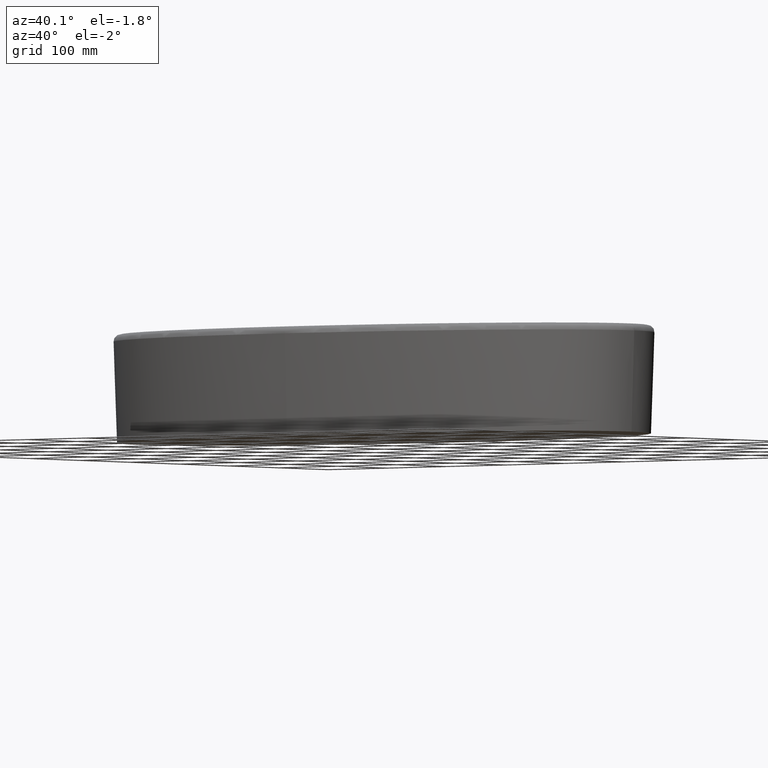
[diagram: clean part render]
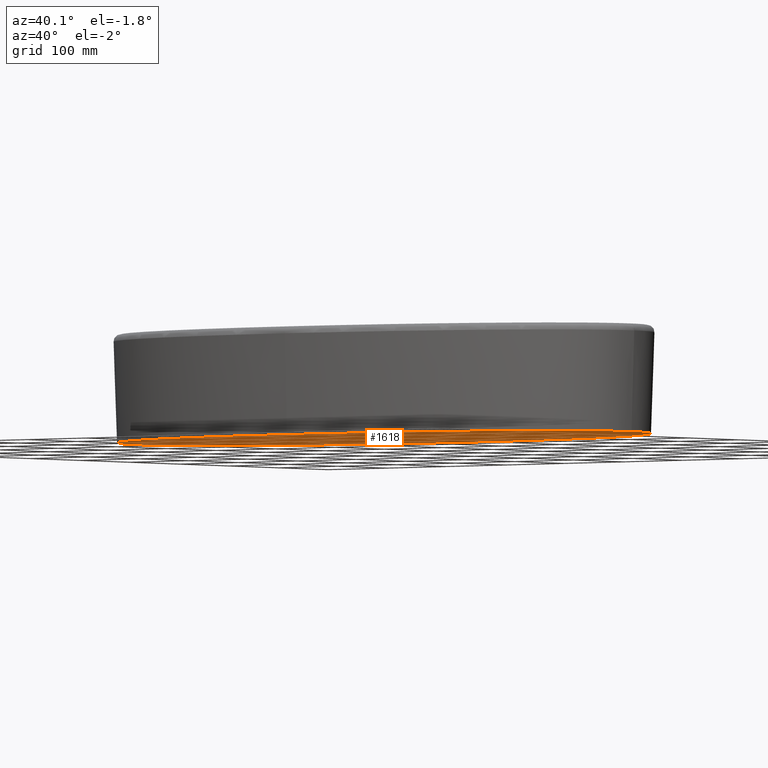
[diagram: same view with one face highlighted and labeled with its STEP entity id]
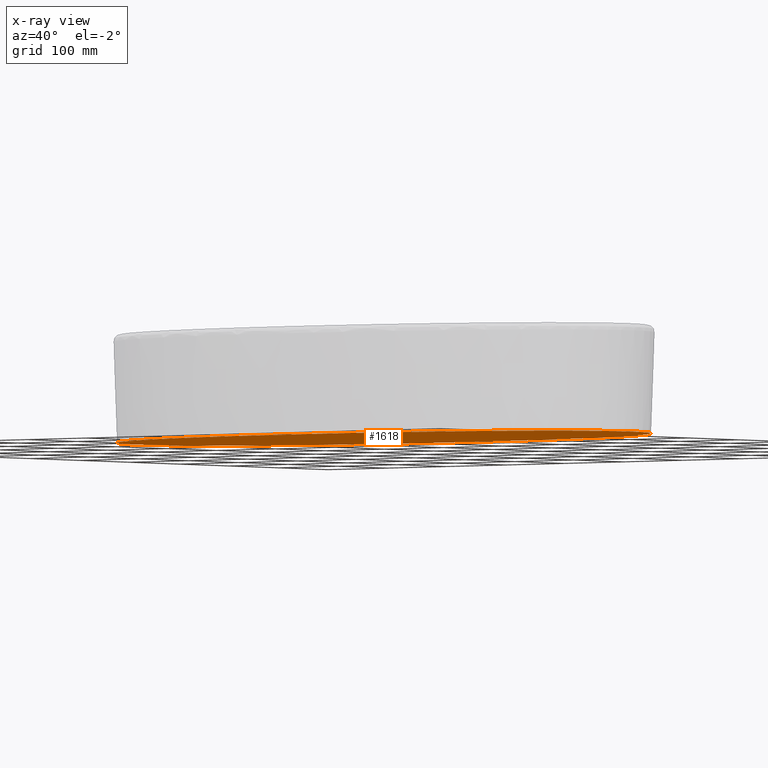
[diagram: x-ray of the same camera — body ghosted, the highlighted face saturated]
A machine part, auxiliary view. The second image highlights one B-rep face of the part: STEP entity #1618.
The next image is the same camera in x-ray: the body ghosted, the highlighted face saturated — about 0% of this face is hidden behind the body in this view.
In plain terms, the highlighted planar face has unit normal (0, 0, -1).
Its self-contained STEP definition (entity closure, byte-faithful):
#1=CARTESIAN_POINT('',(0.E0,1.953686612645E2,-4.230365081388E1));
#2=CARTESIAN_POINT('',(6.390078734488E0,1.953686612645E2,-4.230365081388E1));
#3=CARTESIAN_POINT('',(1.927423367266E1,1.952414856898E2,-4.230365081388E1));
#4=CARTESIAN_POINT('',(3.894134593559E1,1.946465315961E2,-4.230365081388E1));
#5=CARTESIAN_POINT('',(5.886269416731E1,1.936232268164E2,-4.230365081388E1));
#6=CARTESIAN_POINT('',(7.902981023851E1,1.921467375728E2,-4.230365081388E1));
#7=CARTESIAN_POINT('',(9.940199348522E1,1.901926279955E2,-4.230365081388E1));
#8=CARTESIAN_POINT('',(1.199289066717E2,1.877345595200E2,-4.230365081388E1));
#9=CARTESIAN_POINT('',(1.405763011321E2,1.847427176877E2,-4.230365081388E1));
#10=CARTESIAN_POINT('',(1.612811799456E2,1.811904104770E2,-4.230365081388E1));
#11=CARTESIAN_POINT('',(1.820358411745E2,1.770358885918E2,-4.230365081388E1));
#12=CARTESIAN_POINT('',(2.027856505125E2,1.722410035786E2,-4.230365081388E1));
#13=CARTESIAN_POINT('',(2.235655261066E2,1.667327298035E2,-4.230365081388E1));
#14=CARTESIAN_POINT('',(2.438600882349E2,1.605859117585E2,-4.230365081388E1));
#15=CARTESIAN_POINT('',(2.629866773549E2,1.540112999850E2,-4.230365081388E1));
#16=CARTESIAN_POINT('',(2.807779707198E2,1.471184309083E2,-4.230365081388E1));
#17=CARTESIAN_POINT('',(2.969813110931E2,1.400851059263E2,-4.230365081388E1));
#18=CARTESIAN_POINT('',(3.116154582678E2,1.330113017561E2,-4.230365081388E1));
#19=CARTESIAN_POINT('',(3.248773171365E2,1.259064551886E2,-4.230365081388E1));
#20=CARTESIAN_POINT('',(3.368546662556E2,1.188078557271E2,-4.230365081388E1));
#21=CARTESIAN_POINT('',(3.475873266772E2,1.117946935444E2,-4.230365081388E1));
#22=CARTESIAN_POINT('',(3.572161264681E2,1.048592429480E2,-4.230365081388E1));
#23=CARTESIAN_POINT('',(3.658448418241E2,9.801823620303E1,-4.230365081388E1));
#24=CARTESIAN_POINT('',(3.735715540142E2,9.127231236528E1,-4.230365081388E1));
#25=CARTESIAN_POINT('',(3.804609217080E2,8.463880541082E1,-4.230365081388E1));
#26=CARTESIAN_POINT('',(3.865984152923E2,7.811178042358E1,-4.230365081388E1));
#27=CARTESIAN_POINT('',(3.920464700182E2,7.169273104088E1,-4.230365081388E1));
#28=CARTESIAN_POINT('',(3.968758865228E2,6.536178698670E1,-4.230365081388E1));
#29=CARTESIAN_POINT('',(4.011244873322E2,5.913822926578E1,-4.230365081388E1));
#30=CARTESIAN_POINT('',(4.048494060959E2,5.299474097294E1,-4.230365081388E1));
#31=CARTESIAN_POINT('',(4.080826056409E2,4.692471368115E1,-4.230365081388E1));
#32=CARTESIAN_POINT('',(4.108652992586E2,4.092593335232E1,-4.230365081388E1));
#33=CARTESIAN_POINT('',(4.132323550241E2,3.496115844547E1,-4.230365081388E1));
#34=CARTESIAN_POINT('',(4.151954012158E2,2.904328853641E1,-4.230365081388E1));
#35=CARTESIAN_POINT('',(4.167699693101E2,2.318479513370E1,-4.230365081388E1));
#36=CARTESIAN_POINT('',(4.179787079916E2,1.736679915768E1,-4.230365081388E1));
#37=CARTESIAN_POINT('',(4.188296415682E2,1.157609250211E1,-4.230365081388E1));
#38=CARTESIAN_POINT('',(4.193388290851E2,5.794749703103E0,-4.230365081388E1));
#39=CARTESIAN_POINT('',(4.194525443808E2,1.932164904193E0,-4.230365081388E1));
#40=CARTESIAN_POINT('',(4.194525443808E2,0.E0,-4.230365081388E1));
#42=CARTESIAN_POINT('',(0.E0,1.953686612645E2,-4.230365081388E1));
#43=CARTESIAN_POINT('',(-6.390078734488E0,1.953686612645E2,-4.230365081388E1));
#44=CARTESIAN_POINT('',(-1.927423367266E1,1.952414856898E2,-4.230365081388E1));
#45=CARTESIAN_POINT('',(-3.894134593559E1,1.946465315961E2,-4.230365081388E1));
#46=CARTESIAN_POINT('',(-5.886269416731E1,1.936232268164E2,-4.230365081388E1));
#47=CARTESIAN_POINT('',(-7.902981023851E1,1.921467375728E2,-4.230365081388E1));
#48=CARTESIAN_POINT('',(-9.940199348522E1,1.901926279955E2,-4.230365081388E1));
#49=CARTESIAN_POINT('',(-1.199289066717E2,1.877345595200E2,-4.230365081388E1));
#50=CARTESIAN_POINT('',(-1.405763011321E2,1.847427176877E2,-4.230365081388E1));
#51=CARTESIAN_POINT('',(-1.612811799456E2,1.811904104770E2,-4.230365081388E1));
#52=CARTESIAN_POINT('',(-1.820358411745E2,1.770358885918E2,-4.230365081388E1));
#53=CARTESIAN_POINT('',(-2.027856505125E2,1.722410035786E2,-4.230365081388E1));
#54=CARTESIAN_POINT('',(-2.235655261066E2,1.667327298035E2,-4.230365081388E1));
#55=CARTESIAN_POINT('',(-2.438600882349E2,1.605859117585E2,-4.230365081388E1));
#56=CARTESIAN_POINT('',(-2.629866773549E2,1.540112999850E2,-4.230365081388E1));
#57=CARTESIAN_POINT('',(-2.807779707198E2,1.471184309083E2,-4.230365081388E1));
#58=CARTESIAN_POINT('',(-2.969813110931E2,1.400851059263E2,-4.230365081388E1));
#59=CARTESIAN_POINT('',(-3.116154582678E2,1.330113017561E2,-4.230365081388E1));
#60=CARTESIAN_POINT('',(-3.248773171365E2,1.259064551886E2,-4.230365081388E1));
#61=CARTESIAN_POINT('',(-3.368546662556E2,1.188078557271E2,-4.230365081388E1));
#62=CARTESIAN_POINT('',(-3.475873266772E2,1.117946935444E2,-4.230365081388E1));
#63=CARTESIAN_POINT('',(-3.572161264681E2,1.048592429480E2,-4.230365081388E1));
#64=CARTESIAN_POINT('',(-3.658448418241E2,9.801823620303E1,-4.230365081388E1));
#65=CARTESIAN_POINT('',(-3.735715540142E2,9.127231236528E1,-4.230365081388E1));
#66=CARTESIAN_POINT('',(-3.804609217080E2,8.463880541082E1,-4.230365081388E1));
#67=CARTESIAN_POINT('',(-3.865984152923E2,7.811178042358E1,-4.230365081388E1));
#68=CARTESIAN_POINT('',(-3.920464700182E2,7.169273104088E1,-4.230365081388E1));
#69=CARTESIAN_POINT('',(-3.968758865228E2,6.536178698670E1,-4.230365081388E1));
#70=CARTESIAN_POINT('',(-4.011244873322E2,5.913822926578E1,-4.230365081388E1));
#71=CARTESIAN_POINT('',(-4.048494060959E2,5.299474097294E1,-4.230365081388E1));
#72=CARTESIAN_POINT('',(-4.080826056409E2,4.692471368115E1,-4.230365081388E1));
#73=CARTESIAN_POINT('',(-4.108652992586E2,4.092593335232E1,-4.230365081388E1));
#74=CARTESIAN_POINT('',(-4.132323550241E2,3.496115844547E1,-4.230365081388E1));
#75=CARTESIAN_POINT('',(-4.151954012158E2,2.904328853641E1,-4.230365081388E1));
#76=CARTESIAN_POINT('',(-4.167699693101E2,2.318479513370E1,-4.230365081388E1));
#77=CARTESIAN_POINT('',(-4.179787079916E2,1.736679915768E1,-4.230365081388E1));
#78=CARTESIAN_POINT('',(-4.188296415682E2,1.157609250211E1,-4.230365081388E1));
#79=CARTESIAN_POINT('',(-4.193388290851E2,5.794749703103E0,-4.230365081388E1));
#80=CARTESIAN_POINT('',(-4.194525443808E2,1.932164904193E0,-4.230365081388E1));
#81=CARTESIAN_POINT('',(-4.194525443808E2,0.E0,-4.230365081388E1));
#83=CARTESIAN_POINT('',(0.E0,-1.953686612645E2,-4.230365081388E1));
#84=CARTESIAN_POINT('',(-6.390078734488E0,-1.953686612645E2,-4.230365081388E1));
#85=CARTESIAN_POINT('',(-1.927423367266E1,-1.952414856898E2,-4.230365081388E1));
#86=CARTESIAN_POINT('',(-3.894134593559E1,-1.946465315961E2,-4.230365081388E1));
#87=CARTESIAN_POINT('',(-5.886269416731E1,-1.936232268164E2,-4.230365081388E1));
#88=CARTESIAN_POINT('',(-7.902981023851E1,-1.921467375728E2,-4.230365081388E1));
#89=CARTESIAN_POINT('',(-9.940199348522E1,-1.901926279955E2,-4.230365081388E1));
#90=CARTESIAN_POINT('',(-1.199289066717E2,-1.877345595200E2,-4.230365081388E1));
#91=CARTESIAN_POINT('',(-1.405763011321E2,-1.847427176877E2,-4.230365081388E1));
#92=CARTESIAN_POINT('',(-1.612811799456E2,-1.811904104770E2,-4.230365081388E1));
#93=CARTESIAN_POINT('',(-1.820358411745E2,-1.770358885918E2,-4.230365081388E1));
#94=CARTESIAN_POINT('',(-2.027856505125E2,-1.722410035786E2,-4.230365081388E1));
#95=CARTESIAN_POINT('',(-2.235655261066E2,-1.667327298035E2,-4.230365081388E1));
#96=CARTESIAN_POINT('',(-2.438600882349E2,-1.605859117585E2,-4.230365081388E1));
#97=CARTESIAN_POINT('',(-2.629866773549E2,-1.540112999850E2,-4.230365081388E1));
#98=CARTESIAN_POINT('',(-2.807779707198E2,-1.471184309083E2,-4.230365081388E1));
#99=CARTESIAN_POINT('',(-2.969813110931E2,-1.400851059263E2,-4.230365081388E1));
#100=CARTESIAN_POINT('',(-3.116154582678E2,-1.330113017561E2,
-4.230365081388E1));
#101=CARTESIAN_POINT('',(-3.248773171365E2,-1.259064551886E2,
-4.230365081388E1));
#102=CARTESIAN_POINT('',(-3.368546662556E2,-1.188078557271E2,
-4.230365081388E1));
#103=CARTESIAN_POINT('',(-3.475873266772E2,-1.117946935444E2,
-4.230365081388E1));
#104=CARTESIAN_POINT('',(-3.572161264681E2,-1.048592429480E2,
-4.230365081388E1));
#105=CARTESIAN_POINT('',(-3.658448418241E2,-9.801823620303E1,
-4.230365081388E1));
#106=CARTESIAN_POINT('',(-3.735715540142E2,-9.127231236528E1,
-4.230365081388E1));
#107=CARTESIAN_POINT('',(-3.804609217080E2,-8.463880541082E1,
-4.230365081388E1));
#108=CARTESIAN_POINT('',(-3.865984152923E2,-7.811178042358E1,
-4.230365081388E1));
#109=CARTESIAN_POINT('',(-3.920464700182E2,-7.169273104088E1,
-4.230365081388E1));
#110=CARTESIAN_POINT('',(-3.968758865228E2,-6.536178698670E1,
-4.230365081388E1));
#111=CARTESIAN_POINT('',(-4.011244873322E2,-5.913822926578E1,
-4.230365081388E1));
#112=CARTESIAN_POINT('',(-4.048494060959E2,-5.299474097294E1,
-4.230365081388E1));
#113=CARTESIAN_POINT('',(-4.080826056409E2,-4.692471368115E1,
-4.230365081388E1));
#114=CARTESIAN_POINT('',(-4.108652992586E2,-4.092593335232E1,
-4.230365081388E1));
#115=CARTESIAN_POINT('',(-4.132323550241E2,-3.496115844547E1,
-4.230365081388E1));
#116=CARTESIAN_POINT('',(-4.151954012158E2,-2.904328853641E1,
-4.230365081388E1));
#117=CARTESIAN_POINT('',(-4.167699693101E2,-2.318479513370E1,
-4.230365081388E1));
#118=CARTESIAN_POINT('',(-4.179787079916E2,-1.736679915768E1,
-4.230365081388E1));
#119=CARTESIAN_POINT('',(-4.188296415682E2,-1.157609250211E1,
-4.230365081388E1));
#120=CARTESIAN_POINT('',(-4.193388290851E2,-5.794749703103E0,
-4.230365081388E1));
#121=CARTESIAN_POINT('',(-4.194525443808E2,-1.932164904193E0,
-4.230365081388E1));
#122=CARTESIAN_POINT('',(-4.194525443808E2,0.E0,-4.230365081388E1));
#124=CARTESIAN_POINT('',(0.E0,-1.953686612645E2,-4.230365081388E1));
#125=CARTESIAN_POINT('',(6.390078734488E0,-1.953686612645E2,-4.230365081388E1));
#126=CARTESIAN_POINT('',(1.927423367266E1,-1.952414856898E2,-4.230365081388E1));
#127=CARTESIAN_POINT('',(3.894134593559E1,-1.946465315961E2,-4.230365081388E1));
#128=CARTESIAN_POINT('',(5.886269416731E1,-1.936232268164E2,-4.230365081388E1));
#129=CARTESIAN_POINT('',(7.902981023851E1,-1.921467375728E2,-4.230365081388E1));
#130=CARTESIAN_POINT('',(9.940199348522E1,-1.901926279955E2,-4.230365081388E1));
#131=CARTESIAN_POINT('',(1.199289066717E2,-1.877345595200E2,-4.230365081388E1));
#132=CARTESIAN_POINT('',(1.405763011321E2,-1.847427176877E2,-4.230365081388E1));
#133=CARTESIAN_POINT('',(1.612811799456E2,-1.811904104770E2,-4.230365081388E1));
#134=CARTESIAN_POINT('',(1.820358411745E2,-1.770358885918E2,-4.230365081388E1));
#135=CARTESIAN_POINT('',(2.027856505125E2,-1.722410035786E2,-4.230365081388E1));
#136=CARTESIAN_POINT('',(2.235655261066E2,-1.667327298035E2,-4.230365081388E1));
#137=CARTESIAN_POINT('',(2.438600882349E2,-1.605859117585E2,-4.230365081388E1));
#138=CARTESIAN_POINT('',(2.629866773549E2,-1.540112999850E2,-4.230365081388E1));
#139=CARTESIAN_POINT('',(2.807779707198E2,-1.471184309083E2,-4.230365081388E1));
#140=CARTESIAN_POINT('',(2.969813110931E2,-1.400851059263E2,-4.230365081388E1));
#141=CARTESIAN_POINT('',(3.116154582678E2,-1.330113017561E2,-4.230365081388E1));
#142=CARTESIAN_POINT('',(3.248773171365E2,-1.259064551886E2,-4.230365081388E1));
#143=CARTESIAN_POINT('',(3.368546662556E2,-1.188078557271E2,-4.230365081388E1));
#144=CARTESIAN_POINT('',(3.475873266772E2,-1.117946935444E2,-4.230365081388E1));
#145=CARTESIAN_POINT('',(3.572161264681E2,-1.048592429480E2,-4.230365081388E1));
#146=CARTESIAN_POINT('',(3.658448418241E2,-9.801823620303E1,-4.230365081388E1));
#147=CARTESIAN_POINT('',(3.735715540142E2,-9.127231236528E1,-4.230365081388E1));
#148=CARTESIAN_POINT('',(3.804609217080E2,-8.463880541082E1,-4.230365081388E1));
#149=CARTESIAN_POINT('',(3.865984152923E2,-7.811178042358E1,-4.230365081388E1));
#150=CARTESIAN_POINT('',(3.920464700182E2,-7.169273104088E1,-4.230365081388E1));
#151=CARTESIAN_POINT('',(3.968758865228E2,-6.536178698670E1,-4.230365081388E1));
#152=CARTESIAN_POINT('',(4.011244873322E2,-5.913822926578E1,-4.230365081388E1));
#153=CARTESIAN_POINT('',(4.048494060959E2,-5.299474097294E1,-4.230365081388E1));
#154=CARTESIAN_POINT('',(4.080826056409E2,-4.692471368115E1,-4.230365081388E1));
#155=CARTESIAN_POINT('',(4.108652992586E2,-4.092593335232E1,-4.230365081388E1));
#156=CARTESIAN_POINT('',(4.132323550241E2,-3.496115844547E1,-4.230365081388E1));
#157=CARTESIAN_POINT('',(4.151954012158E2,-2.904328853641E1,-4.230365081388E1));
#158=CARTESIAN_POINT('',(4.167699693101E2,-2.318479513370E1,-4.230365081388E1));
#159=CARTESIAN_POINT('',(4.179787079916E2,-1.736679915768E1,-4.230365081388E1));
#160=CARTESIAN_POINT('',(4.188296415682E2,-1.157609250211E1,-4.230365081388E1));
#161=CARTESIAN_POINT('',(4.193388290851E2,-5.794749703103E0,-4.230365081388E1));
#162=CARTESIAN_POINT('',(4.194525443808E2,-1.932164904193E0,-4.230365081388E1));
#163=CARTESIAN_POINT('',(4.194525443808E2,0.E0,-4.230365081388E1));
#211=CARTESIAN_POINT('',(7.465843052587E-3,-2.884318031196E-2,
-4.230365081388E1));
#212=DIRECTION('',(0.E0,0.E0,1.E0));
#213=DIRECTION('',(-9.999992353943E-1,1.236612676221E-3,0.E0));
#214=AXIS2_PLACEMENT_3D('',#211,#212,#213);
#833=CARTESIAN_POINT('',(7.465843052587E-3,2.884318031196E-2,
-4.230365081388E1));
#834=DIRECTION('',(0.E0,0.E0,1.E0));
#835=DIRECTION('',(9.999992353943E-1,-1.236612676212E-3,0.E0));
#836=AXIS2_PLACEMENT_3D('',#833,#834,#835);
#1557=VERTEX_POINT('',#1);
#1558=VERTEX_POINT('',#40);
#1559=VERTEX_POINT('',#124);
#1560=VERTEX_POINT('',#81);
#1561=CARTESIAN_POINT('',(2.333179270232E1,0.E0,-4.230365081388E1));
#1562=CARTESIAN_POINT('',(-2.331686101622E1,1.972796925820E-13,
-4.230365081388E1));
#1563=VERTEX_POINT('',#1561);
#1564=VERTEX_POINT('',#1562);
#1597=CARTESIAN_POINT('',(0.E0,0.E0,-4.230365081388E1));
#1598=DIRECTION('',(0.E0,0.E0,-1.E0));
#1599=DIRECTION('',(0.E0,1.E0,0.E0));
#1600=AXIS2_PLACEMENT_3D('',#1597,#1598,#1599);
#1601=PLANE('',#1600);
#1603=ORIENTED_EDGE('',*,*,#1602,.F.);
#1605=ORIENTED_EDGE('',*,*,#1604,.T.);
#1607=ORIENTED_EDGE('',*,*,#1606,.F.);
#1609=ORIENTED_EDGE('',*,*,#1608,.T.);
#1610=EDGE_LOOP('',(#1603,#1605,#1607,#1609));
#1611=FACE_OUTER_BOUND('',#1610,.F.);
#1613=ORIENTED_EDGE('',*,*,#1612,.F.);
#1615=ORIENTED_EDGE('',*,*,#1614,.F.);
#1616=EDGE_LOOP('',(#1613,#1615));
#1617=FACE_BOUND('',#1616,.F.);
#1618=ADVANCED_FACE('',(#1611,#1617),#1601,.T.);
#41=B_SPLINE_CURVE_WITH_KNOTS('',3,(#1,#2,#3,#4,#5,#6,#7,#8,#9,#10,#11,#12,#13,
#14,#15,#16,#17,#18,#19,#20,#21,#22,#23,#24,#25,#26,#27,#28,#29,#30,#31,#32,#33,
#34,#35,#36,#37,#38,#39,#40),.UNSPECIFIED.,.F.,.F.,(4,1,1,1,1,1,1,1,1,1,1,1,1,1,
1,1,1,1,1,1,1,1,1,1,1,1,1,1,1,1,1,1,1,1,1,1,1,4),(0.E0,2.702702702703E-2,
5.405405405405E-2,8.108108108108E-2,1.081081081081E-1,1.351351351351E-1,
1.621621621622E-1,1.891891891892E-1,2.162162162162E-1,2.432432432432E-1,
2.702702702703E-1,2.972972972973E-1,3.243243243243E-1,3.513513513514E-1,
3.783783783784E-1,4.054054054054E-1,4.324324324324E-1,4.594594594595E-1,
4.864864864865E-1,5.135135135135E-1,5.405405405405E-1,5.675675675676E-1,
5.945945945946E-1,6.216216216216E-1,6.486486486486E-1,6.756756756757E-1,
7.027027027027E-1,7.297297297297E-1,7.567567567568E-1,7.837837837838E-1,
8.108108108108E-1,8.378378378378E-1,8.648648648649E-1,8.918918918919E-1,
9.189189189189E-1,9.459459459459E-1,9.729729729730E-1,1.E0),.UNSPECIFIED.);
#82=B_SPLINE_CURVE_WITH_KNOTS('',3,(#42,#43,#44,#45,#46,#47,#48,#49,#50,#51,#52,
#53,#54,#55,#56,#57,#58,#59,#60,#61,#62,#63,#64,#65,#66,#67,#68,#69,#70,#71,#72,
#73,#74,#75,#76,#77,#78,#79,#80,#81),.UNSPECIFIED.,.F.,.F.,(4,1,1,1,1,1,1,1,1,1,
1,1,1,1,1,1,1,1,1,1,1,1,1,1,1,1,1,1,1,1,1,1,1,1,1,1,1,4),(0.E0,
2.702702702703E-2,5.405405405405E-2,8.108108108108E-2,1.081081081081E-1,
1.351351351351E-1,1.621621621622E-1,1.891891891892E-1,2.162162162162E-1,
2.432432432432E-1,2.702702702703E-1,2.972972972973E-1,3.243243243243E-1,
3.513513513514E-1,3.783783783784E-1,4.054054054054E-1,4.324324324324E-1,
4.594594594595E-1,4.864864864865E-1,5.135135135135E-1,5.405405405405E-1,
5.675675675676E-1,5.945945945946E-1,6.216216216216E-1,6.486486486486E-1,
6.756756756757E-1,7.027027027027E-1,7.297297297297E-1,7.567567567568E-1,
7.837837837838E-1,8.108108108108E-1,8.378378378378E-1,8.648648648649E-1,
8.918918918919E-1,9.189189189189E-1,9.459459459459E-1,9.729729729730E-1,1.E0),
.UNSPECIFIED.);
#123=B_SPLINE_CURVE_WITH_KNOTS('',3,(#83,#84,#85,#86,#87,#88,#89,#90,#91,#92,
#93,#94,#95,#96,#97,#98,#99,#100,#101,#102,#103,#104,#105,#106,#107,#108,#109,
#110,#111,#112,#113,#114,#115,#116,#117,#118,#119,#120,#121,#122),.UNSPECIFIED.,
.F.,.F.,(4,1,1,1,1,1,1,1,1,1,1,1,1,1,1,1,1,1,1,1,1,1,1,1,1,1,1,1,1,1,1,1,1,1,1,
1,1,4),(0.E0,2.702702702703E-2,5.405405405405E-2,8.108108108108E-2,
1.081081081081E-1,1.351351351351E-1,1.621621621622E-1,1.891891891892E-1,
2.162162162162E-1,2.432432432432E-1,2.702702702703E-1,2.972972972973E-1,
3.243243243243E-1,3.513513513514E-1,3.783783783784E-1,4.054054054054E-1,
4.324324324324E-1,4.594594594595E-1,4.864864864865E-1,5.135135135135E-1,
5.405405405405E-1,5.675675675676E-1,5.945945945946E-1,6.216216216216E-1,
6.486486486486E-1,6.756756756757E-1,7.027027027027E-1,7.297297297297E-1,
7.567567567568E-1,7.837837837838E-1,8.108108108108E-1,8.378378378378E-1,
8.648648648649E-1,8.918918918919E-1,9.189189189189E-1,9.459459459459E-1,
9.729729729730E-1,1.E0),.UNSPECIFIED.);
#164=B_SPLINE_CURVE_WITH_KNOTS('',3,(#124,#125,#126,#127,#128,#129,#130,#131,
#132,#133,#134,#135,#136,#137,#138,#139,#140,#141,#142,#143,#144,#145,#146,#147,
#148,#149,#150,#151,#152,#153,#154,#155,#156,#157,#158,#159,#160,#161,#162,
#163),.UNSPECIFIED.,.F.,.F.,(4,1,1,1,1,1,1,1,1,1,1,1,1,1,1,1,1,1,1,1,1,1,1,1,1,
1,1,1,1,1,1,1,1,1,1,1,1,4),(0.E0,2.702702702703E-2,5.405405405405E-2,
8.108108108108E-2,1.081081081081E-1,1.351351351351E-1,1.621621621622E-1,
1.891891891892E-1,2.162162162162E-1,2.432432432432E-1,2.702702702703E-1,
2.972972972973E-1,3.243243243243E-1,3.513513513514E-1,3.783783783784E-1,
4.054054054054E-1,4.324324324324E-1,4.594594594595E-1,4.864864864865E-1,
5.135135135135E-1,5.405405405405E-1,5.675675675676E-1,5.945945945946E-1,
6.216216216216E-1,6.486486486486E-1,6.756756756757E-1,7.027027027027E-1,
7.297297297297E-1,7.567567567568E-1,7.837837837838E-1,8.108108108108E-1,
8.378378378378E-1,8.648648648649E-1,8.918918918919E-1,9.189189189189E-1,
9.459459459459E-1,9.729729729730E-1,1.E0),.UNSPECIFIED.);
#215=CIRCLE('',#214,2.332434469320E1);
#837=CIRCLE('',#836,2.332434469320E1);
#1602=EDGE_CURVE('',#1557,#1558,#41,.T.);
#1604=EDGE_CURVE('',#1557,#1560,#82,.T.);
#1606=EDGE_CURVE('',#1559,#1560,#123,.T.);
#1608=EDGE_CURVE('',#1559,#1558,#164,.T.);
#1612=EDGE_CURVE('',#1564,#1563,#215,.T.);
#1614=EDGE_CURVE('',#1563,#1564,#837,.T.);